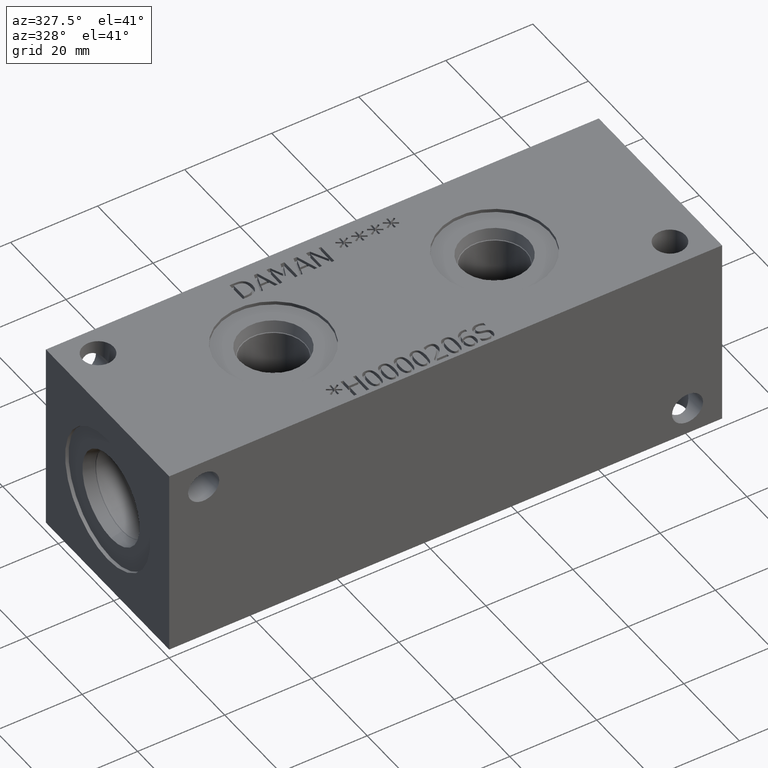
[diagram: clean part render]
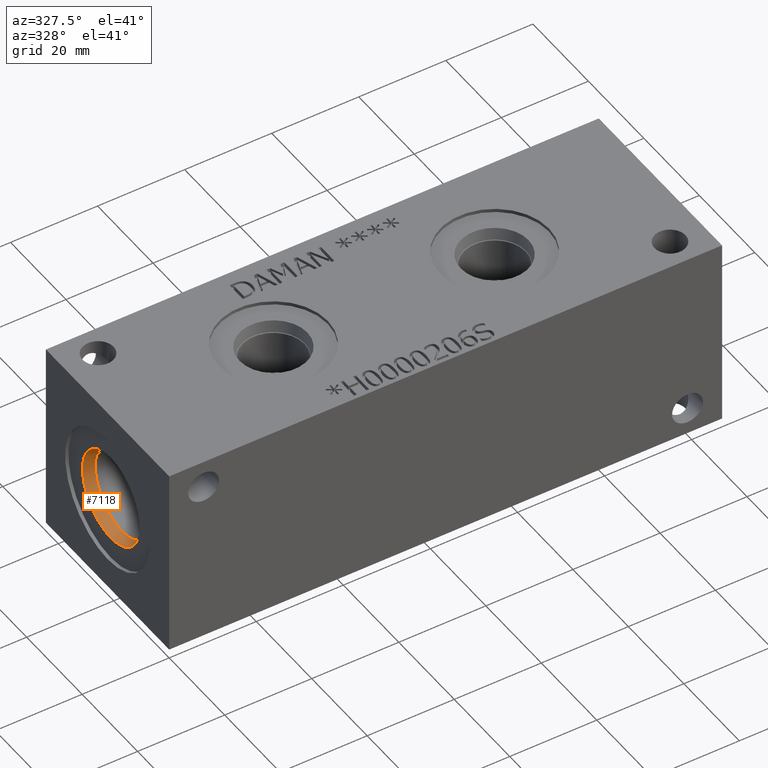
[diagram: same view with one face highlighted and labeled with its STEP entity id]
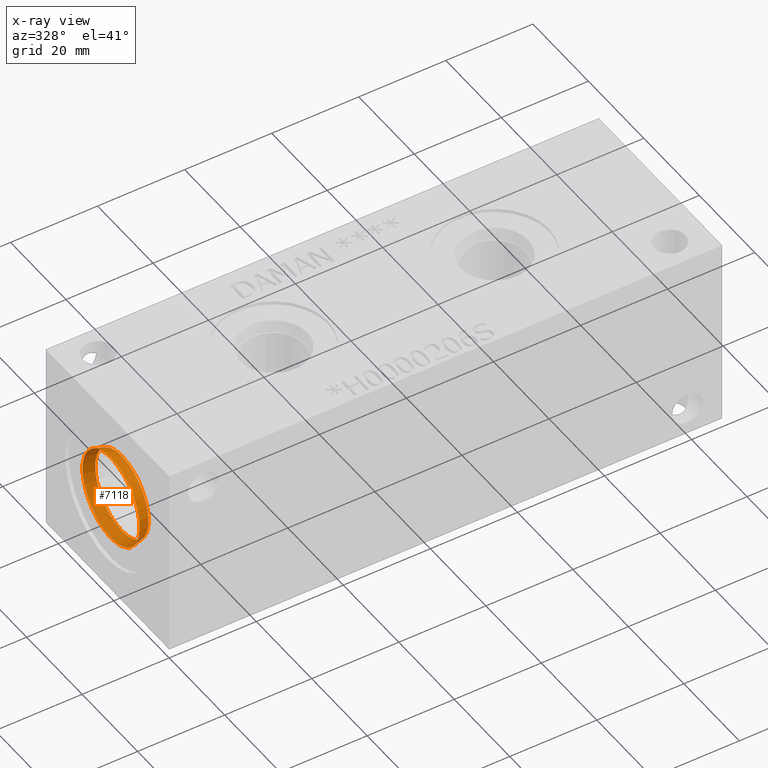
[diagram: x-ray of the same camera — body ghosted, the highlighted face saturated]
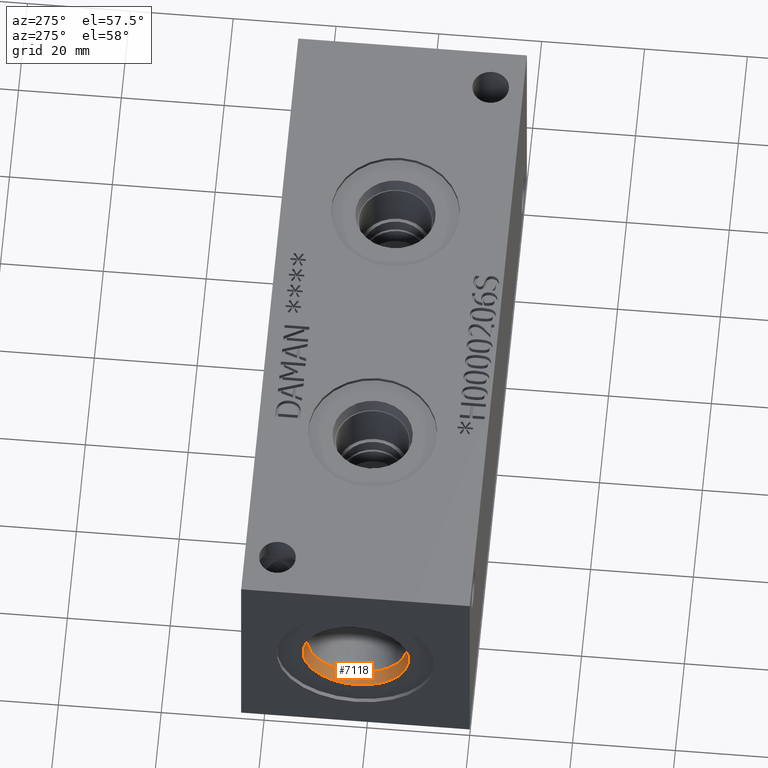
[diagram: same view with one face highlighted and labeled with its STEP entity id]
A machine part, auxiliary view. The second image highlights one B-rep face of the part: STEP entity #7118.
The next image is the same camera in x-ray: the body ghosted, the highlighted face saturated — about 0% of this face is hidden behind the body in this view.
A second angle (auxiliary view) of the same face is appended — the face is thin or edge-on in the first view.
In plain terms, the highlighted conical surface has half-angle 15.05 deg.
Its self-contained STEP definition (entity closure, byte-faithful):
#16=CONICAL_SURFACE('',#7421,9.96315,0.262678410964687);
#94=CIRCLE('',#7419,10.2997);
#95=CIRCLE('',#7420,10.2997);
#96=CIRCLE('',#7422,9.6266);
#97=CIRCLE('',#7423,9.6266);
#867=FACE_OUTER_BOUND('',#1266,.T.);
#1266=EDGE_LOOP('',(#6064,#6065,#6066,#6067,#6068,#6069));
#1949=LINE('',#12184,#2614);
#2614=VECTOR('',#8644,9.96315);
#3249=VERTEX_POINT('',#12178);
#3250=VERTEX_POINT('',#12179);
#3251=VERTEX_POINT('',#12183);
#3252=VERTEX_POINT('',#12185);
#4207=EDGE_CURVE('',#3249,#3250,#94,.T.);
#4208=EDGE_CURVE('',#3250,#3249,#95,.T.);
#4209=EDGE_CURVE('',#3250,#3251,#1949,.T.);
#4210=EDGE_CURVE('',#3251,#3252,#96,.T.);
#4211=EDGE_CURVE('',#3252,#3251,#97,.T.);
#6064=ORIENTED_EDGE('',*,*,#4207,.F.);
#6065=ORIENTED_EDGE('',*,*,#4208,.F.);
#6066=ORIENTED_EDGE('',*,*,#4209,.T.);
#6067=ORIENTED_EDGE('',*,*,#4210,.T.);
#6068=ORIENTED_EDGE('',*,*,#4211,.T.);
#6069=ORIENTED_EDGE('',*,*,#4209,.F.);
#7118=ADVANCED_FACE('',(#867),#16,.F.);
#7419=AXIS2_PLACEMENT_3D('',#12180,#8638,#8639);
#7420=AXIS2_PLACEMENT_3D('',#12181,#8640,#8641);
#7421=AXIS2_PLACEMENT_3D('',#12182,#8642,#8643);
#7422=AXIS2_PLACEMENT_3D('',#12186,#8645,#8646);
#7423=AXIS2_PLACEMENT_3D('',#12187,#8647,#8648);
#8638=DIRECTION('center_axis',(1.,0.,0.));
#8639=DIRECTION('ref_axis',(0.,0.,-1.));
#8640=DIRECTION('center_axis',(1.,0.,0.));
#8641=DIRECTION('ref_axis',(0.,0.,-1.));
#8642=DIRECTION('center_axis',(-1.,0.,0.));
#8643=DIRECTION('ref_axis',(0.,0.,1.));
#8644=DIRECTION('',(0.965697945205446,-3.1800160485371E-17,0.259668016178309));
#8645=DIRECTION('center_axis',(1.,0.,0.));
#8646=DIRECTION('ref_axis',(0.,0.,-1.));
#8647=DIRECTION('center_axis',(1.,0.,0.));
#8648=DIRECTION('ref_axis',(0.,0.,-1.));
#12178=CARTESIAN_POINT('',(0.7874,22.225,32.5247));
#12179=CARTESIAN_POINT('',(0.7874,22.225,11.9253));
#12180=CARTESIAN_POINT('Origin',(0.7874,22.225,22.225));
#12181=CARTESIAN_POINT('Origin',(0.7874,22.225,22.225));
#12182=CARTESIAN_POINT('Origin',(2.03901985,22.225,22.225));
#12183=CARTESIAN_POINT('',(3.2906397,22.225,12.5984));
#12184=CARTESIAN_POINT('',(2.03901985,22.225,12.26185));
#12185=CARTESIAN_POINT('',(3.2906397,22.225,31.8516));
#12186=CARTESIAN_POINT('Origin',(3.2906397,22.225,22.225));
#12187=CARTESIAN_POINT('Origin',(3.2906397,22.225,22.225));